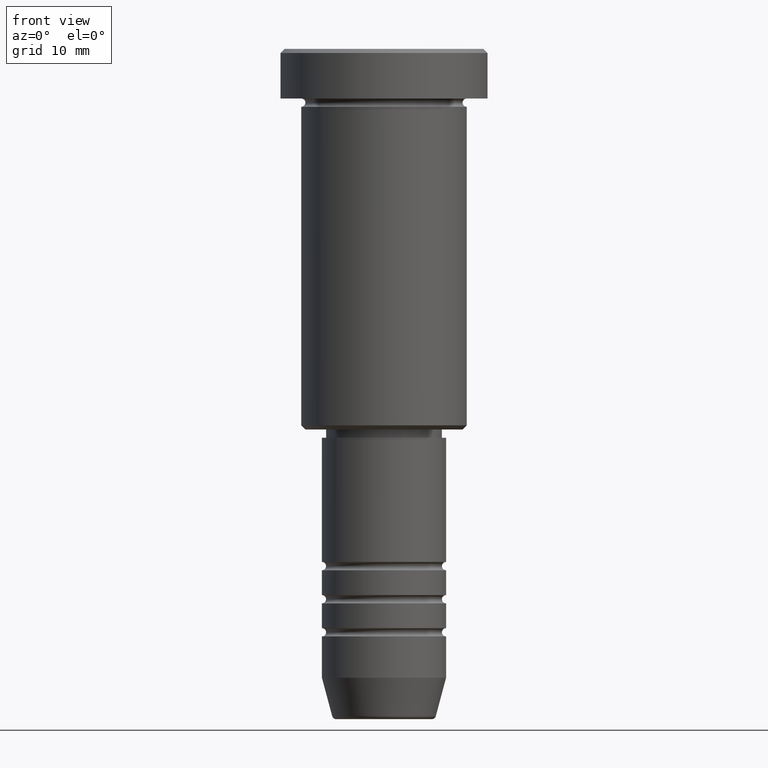
[diagram: clean part render]
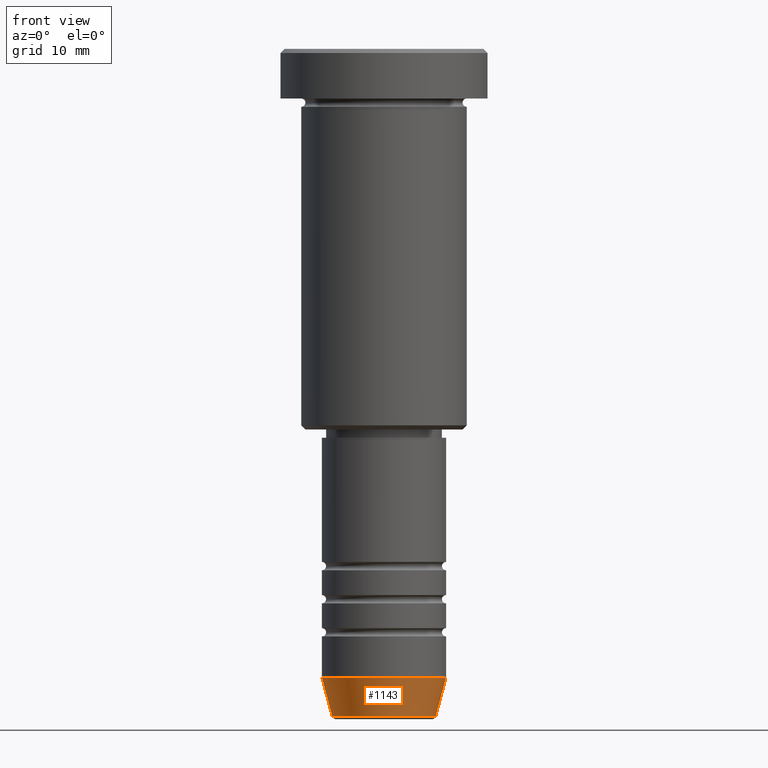
[diagram: same view with one face highlighted and labeled with its STEP entity id]
A machine part, front view. The second image highlights one B-rep face of the part: STEP entity #1143.
In plain terms, the highlighted conical surface has half-angle 15 deg.
Its self-contained STEP definition (entity closure, byte-faithful):
#14 = VERTEX_POINT ( 'NONE', #1087 ) ;
#82 = DIRECTION ( 'NONE',  ( 0.2588190451025213501, 0.000000000000000000, 0.9659258262890680902 ) ) ;
#123 = DIRECTION ( 'NONE',  ( -0.000000000000000000, -0.000000000000000000, 1.000000000000000000 ) ) ;
#130 = CARTESIAN_POINT ( 'NONE',  ( -6.259553456999439547, 8.425296549405630472E-16, -80.62940952255128479 ) ) ;
#248 = ORIENTED_EDGE ( 'NONE', *, *, #952, .F. ) ;
#270 = VERTEX_POINT ( 'NONE', #1144 ) ;
#353 = CARTESIAN_POINT ( 'NONE',  ( 0.000000000000000000, 0.000000000000000000, -76.00000000000001421 ) ) ;
#356 = CIRCLE ( 'NONE', #378, 6.259553456999438659 ) ;
#378 = AXIS2_PLACEMENT_3D ( 'NONE', #636, #891, #705 ) ;
#382 = EDGE_CURVE ( 'NONE', #935, #14, #882, .T. ) ;
#416 = EDGE_CURVE ( 'NONE', #935, #270, #356, .T. ) ;
#519 = AXIS2_PLACEMENT_3D ( 'NONE', #353, #714, #1069 ) ;
#525 = EDGE_LOOP ( 'NONE', ( #866, #703, #584, #248 ) ) ;
#562 = VECTOR ( 'NONE', #82, 1000.000000000000000 ) ;
#563 = CIRCLE ( 'NONE', #913, 7.500000000000000000 ) ;
#584 = ORIENTED_EDGE ( 'NONE', *, *, #687, .T. ) ;
#589 = VERTEX_POINT ( 'NONE', #783 ) ;
#636 = CARTESIAN_POINT ( 'NONE',  ( 0.000000000000000000, 0.000000000000000000, -80.62940952255128479 ) ) ;
#658 = CONICAL_SURFACE ( 'NONE', #519, 7.500000000000000000, 0.2617993877991500740 ) ;
#687 = EDGE_CURVE ( 'NONE', #270, #589, #908, .T. ) ;
#703 = ORIENTED_EDGE ( 'NONE', *, *, #416, .T. ) ;
#705 = DIRECTION ( 'NONE',  ( 1.000000000000000000, 0.000000000000000000, 0.000000000000000000 ) ) ;
#714 = DIRECTION ( 'NONE',  ( -0.000000000000000000, -0.000000000000000000, 1.000000000000000000 ) ) ;
#723 = FACE_OUTER_BOUND ( 'NONE', #525, .T. ) ;
#783 = CARTESIAN_POINT ( 'NONE',  ( 7.500000000000000000, 0.000000000000000000, -76.00000000000001421 ) ) ;
#816 = DIRECTION ( 'NONE',  ( -0.2588190451025213501, 3.169619151431772337E-17, 0.9659258262890680902 ) ) ;
#842 = CARTESIAN_POINT ( 'NONE',  ( 0.000000000000000000, 0.000000000000000000, -76.00000000000001421 ) ) ;
#866 = ORIENTED_EDGE ( 'NONE', *, *, #382, .F. ) ;
#880 = CARTESIAN_POINT ( 'NONE',  ( 7.500000000000000000, 0.000000000000000000, -76.00000000000001421 ) ) ;
#882 = LINE ( 'NONE', #995, #1074 ) ;
#891 = DIRECTION ( 'NONE',  ( -0.000000000000000000, -0.000000000000000000, 1.000000000000000000 ) ) ;
#908 = LINE ( 'NONE', #880, #562 ) ;
#913 = AXIS2_PLACEMENT_3D ( 'NONE', #842, #123, #1124 ) ;
#935 = VERTEX_POINT ( 'NONE', #130 ) ;
#952 = EDGE_CURVE ( 'NONE', #14, #589, #563, .T. ) ;
#995 = CARTESIAN_POINT ( 'NONE',  ( -7.500000000000000000, 9.184850993605147944E-16, -76.00000000000001421 ) ) ;
#1069 = DIRECTION ( 'NONE',  ( 1.000000000000000000, 0.000000000000000000, 0.000000000000000000 ) ) ;
#1074 = VECTOR ( 'NONE', #816, 1000.000000000000000 ) ;
#1087 = CARTESIAN_POINT ( 'NONE',  ( -7.500000000000000000, 9.184850993605147944E-16, -76.00000000000001421 ) ) ;
#1124 = DIRECTION ( 'NONE',  ( 1.000000000000000000, 0.000000000000000000, 0.000000000000000000 ) ) ;
#1143 = ADVANCED_FACE ( 'NONE', ( #723 ), #658, .T. ) ;
#1144 = CARTESIAN_POINT ( 'NONE',  ( 6.259553456999438659, 0.000000000000000000, -80.62940952255128479 ) ) ;